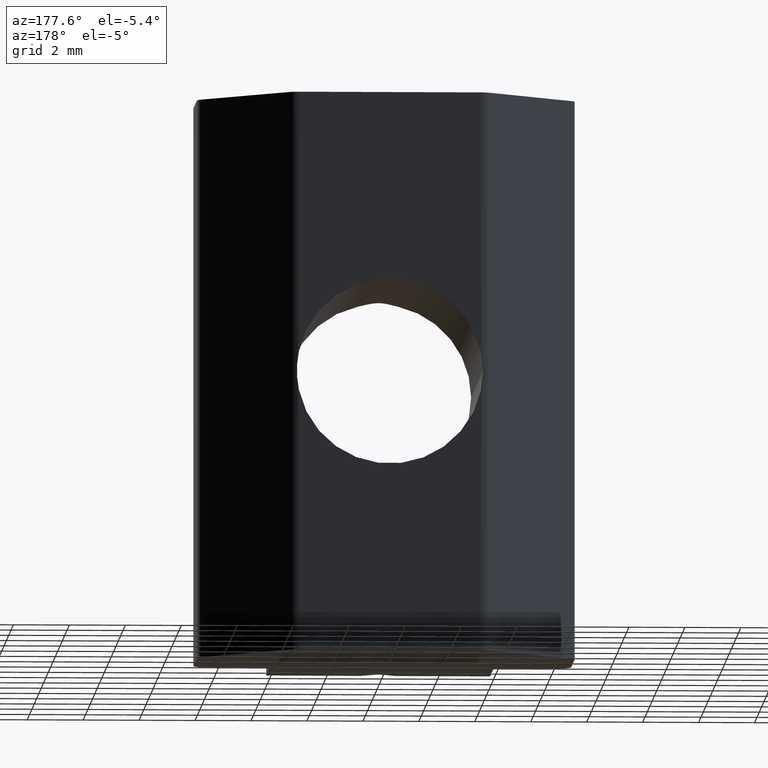
[diagram: clean part render]
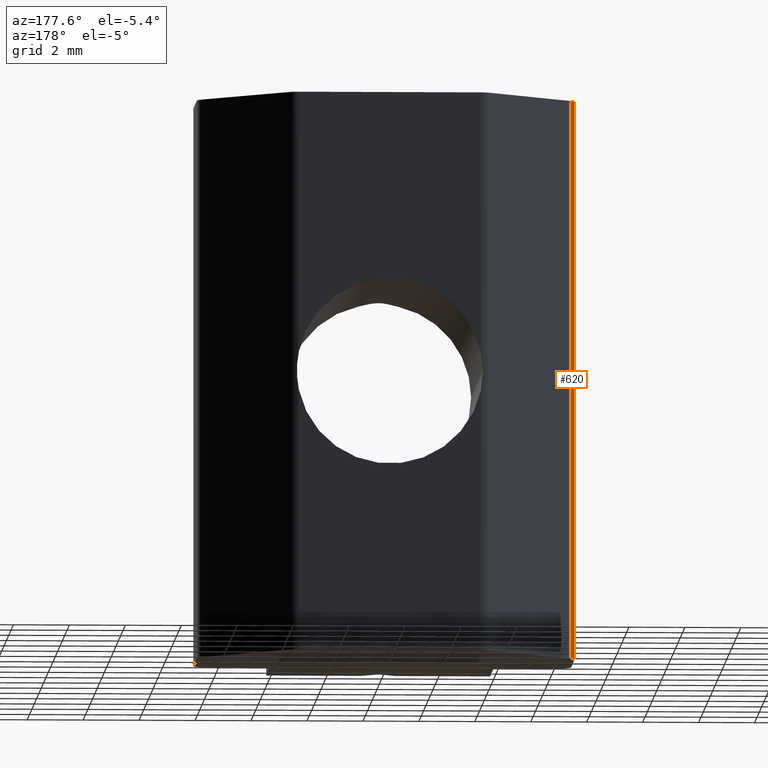
[diagram: same view with one face highlighted and labeled with its STEP entity id]
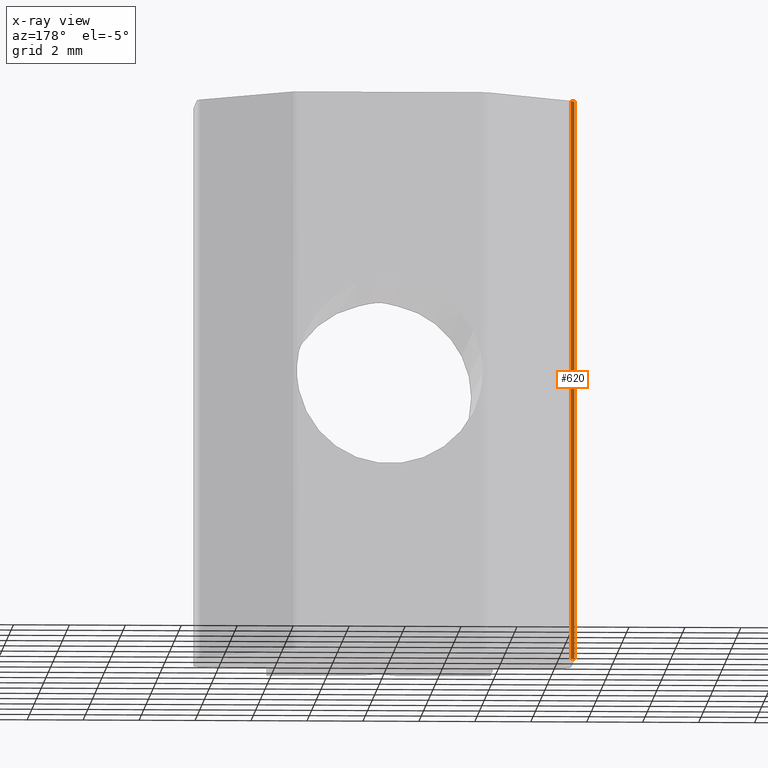
[diagram: x-ray of the same camera — body ghosted, the highlighted face saturated]
A machine part, auxiliary view. The second image highlights one B-rep face of the part: STEP entity #620.
The next image is the same camera in x-ray: the body ghosted, the highlighted face saturated — about 0% of this face is hidden behind the body in this view.
In plain terms, the highlighted cylindrical surface (edge-blend (fillet) strip) has radius 0.5 mm, axis along (0, 0, 1).
Its self-contained STEP definition (entity closure, byte-faithful):
#54=FACE_OUTER_BOUND('',#85,.T.);
#85=EDGE_LOOP('',(#525,#526,#527,#528));
#144=LINE('',#1095,#201);
#145=LINE('',#1099,#202);
#201=VECTOR('',#843,10.);
#202=VECTOR('',#848,10.);
#227=CIRCLE('',#684,0.500000000000005);
#232=CIRCLE('',#695,0.500000000000005);
#287=VERTEX_POINT('',#1056);
#288=VERTEX_POINT('',#1058);
#300=VERTEX_POINT('',#1093);
#301=VERTEX_POINT('',#1097);
#365=EDGE_CURVE('',#287,#288,#227,.T.);
#384=EDGE_CURVE('',#287,#300,#144,.T.);
#385=EDGE_CURVE('',#301,#300,#232,.T.);
#386=EDGE_CURVE('',#288,#301,#145,.T.);
#525=ORIENTED_EDGE('',*,*,#384,.T.);
#526=ORIENTED_EDGE('',*,*,#385,.F.);
#527=ORIENTED_EDGE('',*,*,#386,.F.);
#528=ORIENTED_EDGE('',*,*,#365,.F.);
#595=CYLINDRICAL_SURFACE('',#694,0.500000000000005);
#620=ADVANCED_FACE('',(#54),#595,.T.);
#684=AXIS2_PLACEMENT_3D('',#1059,#809,#810);
#694=AXIS2_PLACEMENT_3D('',#1096,#844,#845);
#695=AXIS2_PLACEMENT_3D('',#1098,#846,#847);
#809=DIRECTION('center_axis',(0.,0.,-1.));
#810=DIRECTION('ref_axis',(-0.707106781186549,0.707106781186546,0.));
#843=DIRECTION('',(0.,0.,1.));
#844=DIRECTION('center_axis',(0.,0.,1.));
#845=DIRECTION('ref_axis',(-0.707106781186549,0.707106781186546,0.));
#846=DIRECTION('center_axis',(0.,0.,1.));
#847=DIRECTION('ref_axis',(-0.707106781186549,0.707106781186546,0.));
#848=DIRECTION('',(0.,0.,1.));
#1056=CARTESIAN_POINT('',(-6.75,3.5,-10.));
#1058=CARTESIAN_POINT('',(-6.60355339059328,3.85355339059327,-10.));
#1059=CARTESIAN_POINT('Origin',(-6.25,3.5,-10.));
#1093=CARTESIAN_POINT('',(-6.75,3.5,10.));
#1095=CARTESIAN_POINT('',(-6.75,3.5,0.));
#1096=CARTESIAN_POINT('Origin',(-6.25,3.5,0.));
#1097=CARTESIAN_POINT('',(-6.60355339059328,3.85355339059327,10.));
#1098=CARTESIAN_POINT('Origin',(-6.25,3.5,10.));
#1099=CARTESIAN_POINT('',(-6.60355339059327,3.85355339059327,0.));